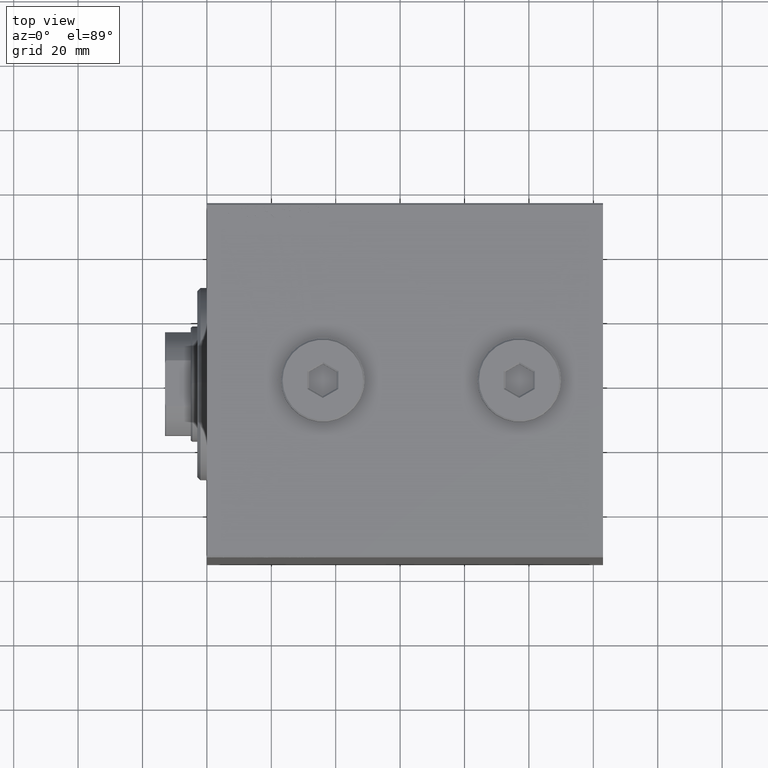
[diagram: clean part render]
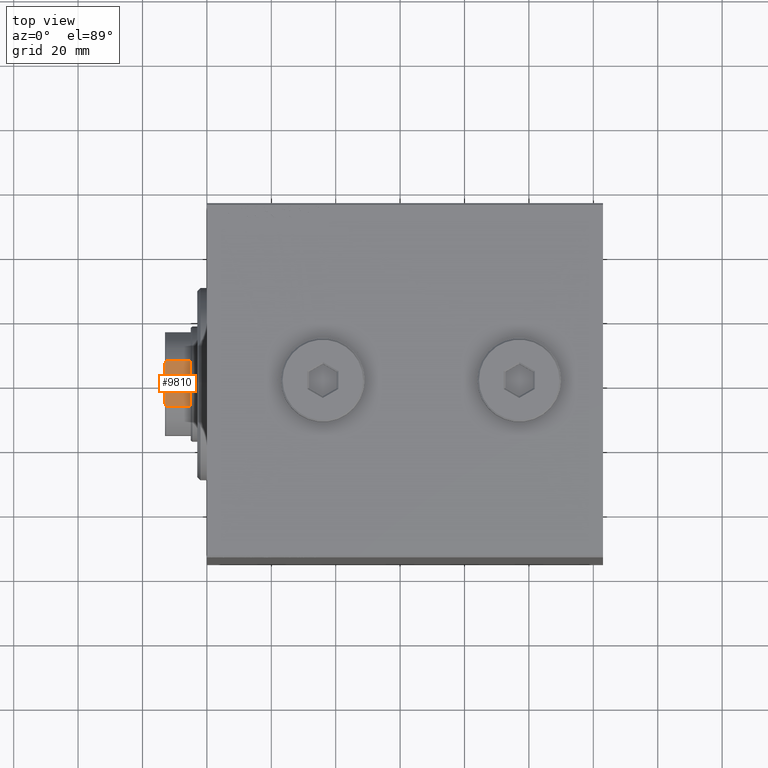
[diagram: same view with one face highlighted and labeled with its STEP entity id]
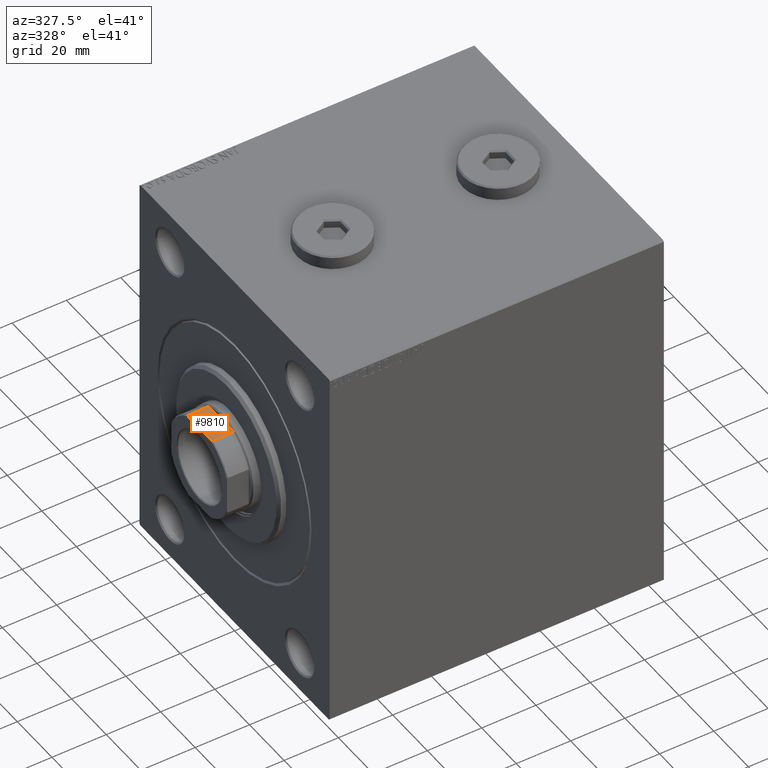
[diagram: same view with one face highlighted and labeled with its STEP entity id]
A machine part, top view. The second image highlights one B-rep face of the part: STEP entity #9810.
A second angle (auxiliary view) of the same face is appended — the face is thin or edge-on in the first view.
In plain terms, the highlighted planar face has unit normal (-0, -0, -1).
Its self-contained STEP definition (entity closure, byte-faithful):
#1269 = VERTEX_POINT ( 'NONE', #2945 ) ;
#1892 = EDGE_CURVE ( 'NONE', #39663, #16291, #11380, .T. ) ;
#2945 = CARTESIAN_POINT ( 'NONE',  ( 15.99999999999999645, -7.088723439378925129, 55.99999999999997868 ) ) ;
#3374 = PLANE ( 'NONE',  #42040 ) ;
#3693 = CARTESIAN_POINT ( 'NONE',  ( 16.00000000000000000, 6.572519770966295027, 63.90435784578531297 ) ) ;
#4368 = CARTESIAN_POINT ( 'NONE',  ( 16.00000000000000000, 6.831413176973278212, 63.80422864504615887 ) ) ;
#5420 = DIRECTION ( 'NONE',  ( 1.084202172485504434E-16, -1.000000000000000000, 0.000000000000000000 ) ) ;
#7404 = CARTESIAN_POINT ( 'NONE',  ( 16.00000000000000355, -6.311893535223839891, 64.00000000000000000 ) ) ;
#7434 = CARTESIAN_POINT ( 'NONE',  ( 16.00000000000000355, -6.311893535223839891, 64.00000000000000000 ) ) ;
#7470 = EDGE_CURVE ( 'NONE', #1269, #16291, #43738, .T. ) ;
#9625 = ORIENTED_EDGE ( 'NONE', *, *, #38241, .T. ) ;
#9810 = ADVANCED_FACE ( 'NONE', ( #34895 ), #3374, .F. ) ;
#9895 = VERTEX_POINT ( 'NONE', #26106 ) ;
#11380 = B_SPLINE_CURVE_WITH_KNOTS ( 'NONE', 3,
 ( #7434, #42371, #14103, #17557 ),
 .UNSPECIFIED., .F., .F.,
 ( 4, 4 ),
 ( 8.673617379884035472E-19, 0.0008327452791758083086 ),
 .UNSPECIFIED. ) ;
#11871 = EDGE_LOOP ( 'NONE', ( #9625, #17178, #21234, #44991, #21744, #22951 ) ) ;
#12259 = CARTESIAN_POINT ( 'NONE',  ( 15.99999999999999645, -7.088723439378925129, -0.001000000000001000089 ) ) ;
#12954 = VECTOR ( 'NONE', #21188, 1000.000000000000000 ) ;
#14103 = CARTESIAN_POINT ( 'NONE',  ( 16.00000000000000355, -6.831413176973289758, 63.80422864504615887 ) ) ;
#15022 = VECTOR ( 'NONE', #38872, 1000.000000000000000 ) ;
#15365 = CARTESIAN_POINT ( 'NONE',  ( 16.00000000000000000, 7.088723439378916247, 63.70000000000000995 ) ) ;
#15806 = CARTESIAN_POINT ( 'NONE',  ( 16.00000000000000000, 16.00000000000000000, 55.99999999999999289 ) ) ;
#16291 = VERTEX_POINT ( 'NONE', #32578 ) ;
#17178 = ORIENTED_EDGE ( 'NONE', *, *, #35339, .T. ) ;
#17364 = B_SPLINE_CURVE_WITH_KNOTS ( 'NONE', 3,
 ( #38652, #4368, #3693, #35662 ),
 .UNSPECIFIED., .F., .F.,
 ( 4, 4 ),
 ( 0.000000000000000000, 0.0008327452791758180664 ),
 .UNSPECIFIED. ) ;
#17557 = CARTESIAN_POINT ( 'NONE',  ( 15.99999999999999645, -7.088723439378925129, 63.70000000000000995 ) ) ;
#20491 = CARTESIAN_POINT ( 'NONE',  ( 16.00000000000000000, 16.00000000000000000, 64.00000000000000000 ) ) ;
#21188 = DIRECTION ( 'NONE',  ( -0.000000000000000000, -0.000000000000000000, 1.000000000000000000 ) ) ;
#21234 = ORIENTED_EDGE ( 'NONE', *, *, #34357, .F. ) ;
#21411 = CARTESIAN_POINT ( 'NONE',  ( 16.00000000000000000, 7.088723439378916247, -0.001000000000001000089 ) ) ;
#21744 = ORIENTED_EDGE ( 'NONE', *, *, #7470, .F. ) ;
#22951 = ORIENTED_EDGE ( 'NONE', *, *, #43581, .T. ) ;
#24721 = CARTESIAN_POINT ( 'NONE',  ( 16.00000000000000000, 7.088723439378916247, 55.99999999999997868 ) ) ;
#24811 = VERTEX_POINT ( 'NONE', #15365 ) ;
#26106 = CARTESIAN_POINT ( 'NONE',  ( 16.00000000000000000, 6.311893535223821239, 64.00000000000000000 ) ) ;
#26156 = LINE ( 'NONE', #21411, #12954 ) ;
#26881 = VECTOR ( 'NONE', #39946, 1000.000000000000000 ) ;
#31439 = CARTESIAN_POINT ( 'NONE',  ( 16.00000000000000000, 16.00000000000000000, 64.00000000000000000 ) ) ;
#32578 = CARTESIAN_POINT ( 'NONE',  ( 15.99999999999999645, -7.088723439378925129, 63.70000000000000995 ) ) ;
#32713 = DIRECTION ( 'NONE',  ( -0.000000000000000000, -0.000000000000000000, 1.000000000000000000 ) ) ;
#34357 = EDGE_CURVE ( 'NONE', #39663, #9895, #38638, .T. ) ;
#34895 = FACE_OUTER_BOUND ( 'NONE', #11871, .T. ) ;
#35339 = EDGE_CURVE ( 'NONE', #24811, #9895, #17364, .T. ) ;
#35662 = CARTESIAN_POINT ( 'NONE',  ( 16.00000000000000000, 6.311893535223821239, 64.00000000000000000 ) ) ;
#38241 = EDGE_CURVE ( 'NONE', #43058, #24811, #26156, .T. ) ;
#38638 = LINE ( 'NONE', #20491, #15022 ) ;
#38652 = CARTESIAN_POINT ( 'NONE',  ( 16.00000000000000000, 7.088723439378916247, 63.70000000000000995 ) ) ;
#38872 = DIRECTION ( 'NONE',  ( -1.084202172485504434E-16, 1.000000000000000000, -0.000000000000000000 ) ) ;
#39663 = VERTEX_POINT ( 'NONE', #7404 ) ;
#39678 = DIRECTION ( 'NONE',  ( -1.000000000000000000, -1.084202172485504434E-16, 0.000000000000000000 ) ) ;
#39946 = DIRECTION ( 'NONE',  ( -1.084202172485504434E-16, 1.000000000000000000, -0.000000000000000000 ) ) ;
#40635 = LINE ( 'NONE', #15806, #26881 ) ;
#41978 = VECTOR ( 'NONE', #32713, 1000.000000000000000 ) ;
#42040 = AXIS2_PLACEMENT_3D ( 'NONE', #31439, #39678, #5420 ) ;
#42371 = CARTESIAN_POINT ( 'NONE',  ( 16.00000000000000000, -6.572519770966311903, 63.90435784578531297 ) ) ;
#43058 = VERTEX_POINT ( 'NONE', #24721 ) ;
#43581 = EDGE_CURVE ( 'NONE', #1269, #43058, #40635, .T. ) ;
#43738 = LINE ( 'NONE', #12259, #41978 ) ;
#44991 = ORIENTED_EDGE ( 'NONE', *, *, #1892, .T. ) ;